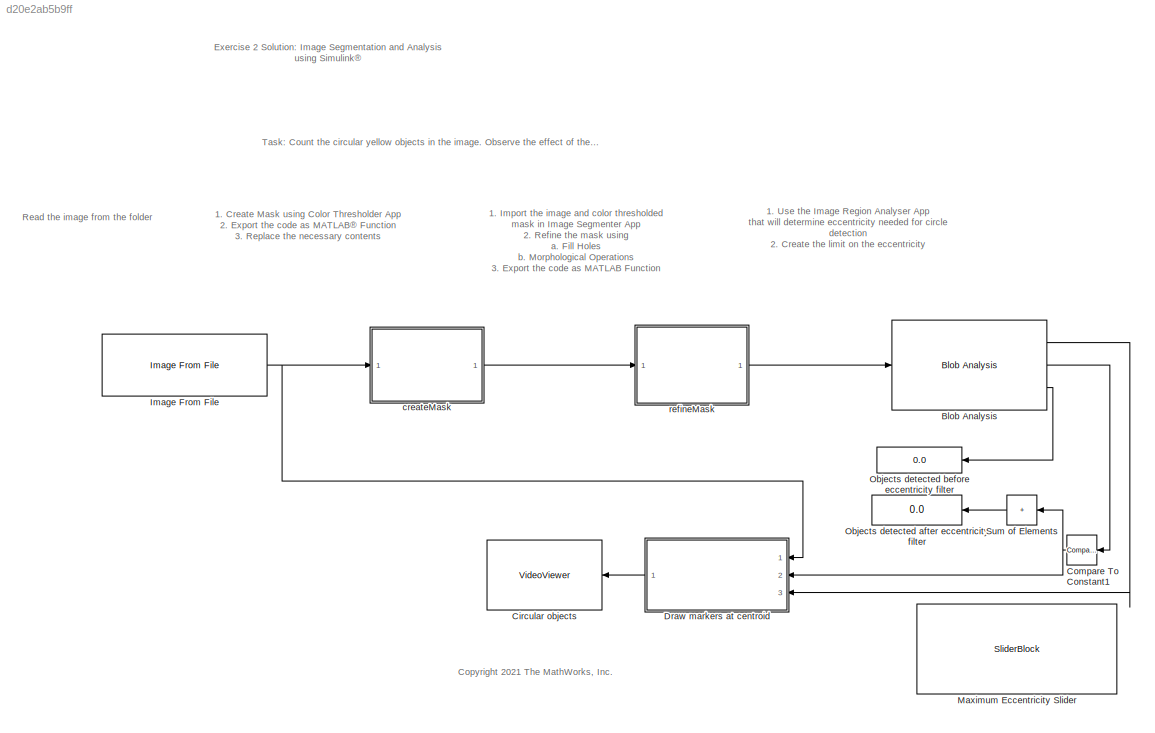
MODEL slx_d20e2ab5b9ff
KIND model
CONFIG AbsTol = auto
CONFIG EnableMultiTasking = off
CONFIG FixedStep = auto
CONFIG MaxStep = auto
CONFIG MinStep = auto
CONFIG RelTol = 1e-3
CONFIG SampleTimeConstraint = Unconstrained
CONFIG SolverName = FixedStepAuto
CONFIG StartTime = 0.0
CONFIG StopTime = 100
BLOCK [Reference] Blob Analysis  REF=visionstatistics/Blob Analysis
  Ports = [1, 3]
  SourceBlock = visionstatistics/Blob Analysis
  SourceProductBaseCode = VP
  SourceType = Blob Analysis
  Tag = vipblks_row_conv
BLOCK [VideoViewer] Circular objects
  FigPos = [1158 564 765 456]
  Ports = [1]
  ScopeSpecificationString = vipscopes.VideoViewerScopeCfg('CurrentConfiguration', extmgr.ConfigurationSet(extmgr.Configuration('Core','General UI',true),extmgr.Configuration('Core','Source UI',true),extmgr.Configuration('Sources','WiredSimulink',true),extmgr.Configuration('Visuals','Video',true),extmgr.Configuration('Tools','Image Navigation Tools',true),extmgr.Configuration('Tools','Image Tool',true),extmgr.Configuration('T...<+76ch>
BLOCK [Reference] Compare To Constant1  REF=simulink/Logic and Bit
Operations/Compare
To Constant
  Ports = [1, 1]
  SourceBlock = simulink/Logic and Bit\nOperations/Compare\nTo Constant
  SourceProductBaseCode = SL
  SourceType = Compare To Constant
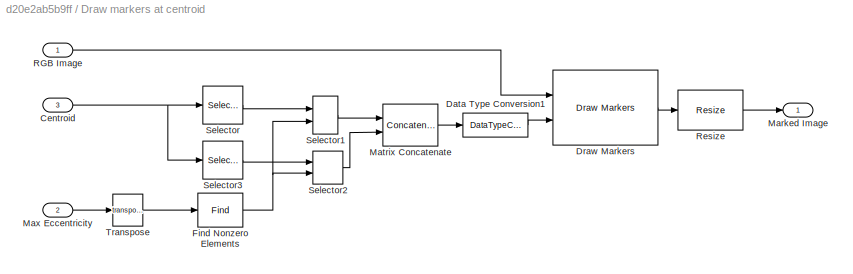
BLOCK [SubSystem] Draw markers at centroid
  Ports = [3, 1]
  RequestExecContextInheritance = off
BLOCK [Inport] Draw markers at centroid/Centroid
  Port = 3
BLOCK [DataTypeConversion] Draw markers at centroid/Data Type Conversion1
  OutDataTypeStr = int32
  RndMeth = Floor
  SaturateOnIntegerOverflow = off
BLOCK [Reference] Draw markers at centroid/Draw Markers  REF=visiontextngfix/Draw Markers
  Ports = [2, 1]
  SourceBlock = visiontextngfix/Draw Markers
  SourceProductBaseCode = VP
  SourceType = Draw Markers
BLOCK [Find] Draw markers at centroid/Find Nonzero Elements
  IndexMode = Zero-based
  NumberOfInputDimensions = 3
  Ports = [1, 1]
BLOCK [Outport] Draw markers at centroid/Marked Image 
BLOCK [Concatenate] Draw markers at centroid/Matrix Concatenate
  ConcatenateDimension = 2
  Mode = Multidimensional array
  Ports = [2, 1]
BLOCK [Inport] Draw markers at centroid/Max Eccentricity
  Port = 2
BLOCK [Inport] Draw markers at centroid/RGB Image
BLOCK [Reference] Draw markers at centroid/Resize  REF=visiongeotforms/Resize
  Ports = [1, 1]
  SourceBlock = visiongeotforms/Resize
  SourceProductBaseCode = VP
  SourceType = Resize
BLOCK [Selector] Draw markers at centroid/Selector
  IndexOptions = Select all,Index vector (dialog)
  Indices = [1],[1]
  InputPortWidth = 3
  NumberOfDimensions = 2
  OutputSizes = 1,1
  Ports = [1, 1]
BLOCK [Selector] Draw markers at centroid/Selector1
  IndexMode = Zero-based
  IndexOptions = Index vector (port)
  Indices = [1 3]
  InputPortWidth = 50
  OutputSizes = 1
  Ports = [2, 1]
BLOCK [Selector] Draw markers at centroid/Selector2
  IndexMode = Zero-based
  IndexOptions = Index vector (port)
  Indices = [1 3]
  InputPortWidth = 50
  OutputSizes = 1
  Ports = [2, 1]
BLOCK [Selector] Draw markers at centroid/Selector3
  IndexOptions = Select all,Index vector (dialog)
  Indices = [2],[2]
  InputPortWidth = 3
  NumberOfDimensions = 2
  OutputSizes = 1,1
  Ports = [1, 1]
BLOCK [Math] Draw markers at centroid/Transpose
  Operator = transpose
  Ports = [1, 1]
BLOCK [Reference] Image From File  REF=visionsources/Image From File
  Ports = [0, 1]
  SourceBlock = visionsources/Image From File
  SourceProductBaseCode = VP
  SourceType = Image From File
  Tag = vipblks_nd
BLOCK [SliderBlock] Maximum Eccentricity Slider
  ScaleMax = 1
BLOCK [Display] Objects detected after eccentricity filter
  Decimation = 1
  Ports = [1]
BLOCK [Display] Objects detected before eccentricity filter
  Decimation = 1
  Ports = [1]
BLOCK [Sum] Sum of Elements
  IconShape = rectangular
  Inputs = +
  Ports = [1, 1]
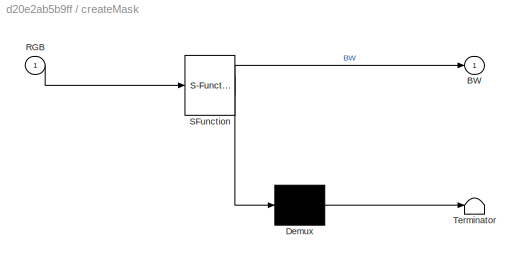
BLOCK [SubSystem] createMask
  ErrorFcn = Stateflow.Translate.translate
  PermitHierarchicalResolution = ExplicitOnly
  Ports = [1, 1]
  RequestExecContextInheritance = off
  SFBlockType = MATLAB Function
  TreatAsAtomicUnit = on
BLOCK [Demux] createMask/ Demux 
  Outputs = 1
  Ports = [1, 1]
BLOCK [S-Function] createMask/ SFunction 
  EnableBusSupport = on
  FunctionName = sf_sfun
  PortCounts = [1 2]
  Ports = [1, 2]
  SFcnIsStateOwnerBlock = off
  SFunctionDeploymentMode = off
  Tag = Stateflow S-Function 2
BLOCK [Terminator] createMask/ Terminator 
BLOCK [Outport] createMask/BW
BLOCK [Inport] createMask/RGB
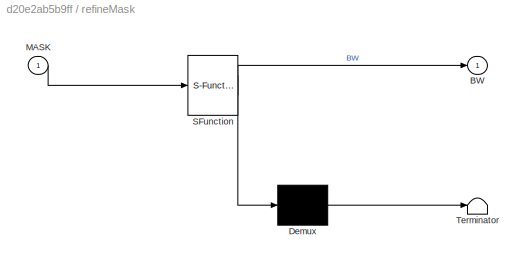
BLOCK [SubSystem] refineMask
  ErrorFcn = Stateflow.Translate.translate
  PermitHierarchicalResolution = ExplicitOnly
  Ports = [1, 1]
  RequestExecContextInheritance = off
  SFBlockType = MATLAB Function
  TreatAsAtomicUnit = on
BLOCK [Demux] refineMask/ Demux 
  Outputs = 1
  Ports = [1, 1]
BLOCK [S-Function] refineMask/ SFunction 
  EnableBusSupport = on
  FunctionName = sf_sfun
  PortCounts = [1 2]
  Ports = [1, 2]
  SFcnIsStateOwnerBlock = off
  SFunctionDeploymentMode = off
  Tag = Stateflow S-Function 1
BLOCK [Terminator] refineMask/ Terminator 
BLOCK [Outport] refineMask/BW
BLOCK [Inport] refineMask/MASK
ANNOTATION (root): 1. Create Mask using Color Thresholder App 2. Export the code as MATLAB® Function 3. Replace the necessary contents
ANNOTATION (root): 1. Import the image and color thresholded mask in Image Segmenter App 2. Refine the mask using a. Fill Holes b. Morphological Operations 3. Export the code as MATLAB Function 4. Replace the necessary contents
ANNOTATION (root): 1. Use the Image Region Analyser App that will determine eccentricity needed for circle detection 2. Create the limit on the eccentricity
ANNOTATION (root): Task: Count the circular yellow objects in the image. Observe the effect of the 'eccentricity' slider on the number of detected objects
ANNOTATION (root): Exercise 2 Solution: Image Segmentation and Analysis using Simulink®
ANNOTATION (root): <copyright redacted>
ANNOTATION (root): Read the image from the folder
LINE Blob Analysis:1 -> Draw markers at centroid:3
LINE Blob Analysis:2 -> Compare To Constant1:1
LINE Blob Analysis:3 -> Objects detected before eccentricity filter:1
NET Compare To Constant1:1 -> Draw markers at centroid:2, Sum of Elements:1
NET Draw markers at centroid/Centroid:1 -> Draw markers at centroid/Selector3:1, Draw markers at centroid/Selector:1
LINE Draw markers at centroid/Data Type Conversion1:1 -> Draw markers at centroid/Draw Markers:2
LINE Draw markers at centroid/Draw Markers:1 -> Draw markers at centroid/Resize:1
NET Draw markers at centroid/Find Nonzero Elements:1 -> Draw markers at centroid/Selector1:2, Draw markers at centroid/Selector2:2
LINE Draw markers at centroid/Matrix Concatenate:1 -> Draw markers at centroid/Data Type Conversion1:1
LINE Draw markers at centroid/Max Eccentricity:1 -> Draw markers at centroid/Transpose:1
LINE Draw markers at centroid/RGB Image:1 -> Draw markers at centroid/Draw Markers:1
LINE Draw markers at centroid/Resize:1 -> Draw markers at centroid/Marked Image :1
LINE Draw markers at centroid/Selector1:1 -> Draw markers at centroid/Matrix Concatenate:1
LINE Draw markers at centroid/Selector2:1 -> Draw markers at centroid/Matrix Concatenate:2
LINE Draw markers at centroid/Selector3:1 -> Draw markers at centroid/Selector2:1
LINE Draw markers at centroid/Selector:1 -> Draw markers at centroid/Selector1:1
LINE Draw markers at centroid/Transpose:1 -> Draw markers at centroid/Find Nonzero Elements:1
LINE Draw markers at centroid:1 -> Circular objects:1
NET Image From File:1 -> Draw markers at centroid:1, createMask:1
LINE Sum of Elements:1 -> Objects detected after eccentricity filter:1
LINE createMask:1 -> refineMask:1
LINE refineMask:1 -> Blob Analysis:1
note: NET lines group one-source signal fan-out (src -> all destinations, sorted); 1:1 wires keep LINE
CHART createMask states=1 transitions=1
  STATE_LABEL 'eML_blk_kernel()'
  STATE_LABEL 'SCRIPT:\nfunction BW  = createMask(RGB)\n%createMask  Threshold RGB image using auto-generated code from colorThresholder app.\n%  [BW,MASKEDRGBIMAGE] = createMask(RGB) thresholds image RGB using\n%  auto-generated code from the colorThresholder app. The colorspace and\n%  range for each channel of the colorspace were set within the app. The\n%  segmentation mask is returned in BW, and a composite of th...<+1314ch>'
CHART refineMask states=1 transitions=1
  STATE_LABEL 'eML_blk_kernel()'
  STATE_LABEL "SCRIPT:\nfunction BW = refineMask(MASK)\n\n% Create empty mask.\nBW = false(size(MASK,1),size(MASK,2));\n\n% Load Mask\nBW = MASK;\n\n% Fill holes\nBW = imfill(BW, 'holes');\n\n% Open mask with disk\nradius = 3;\ndecomposition = 0;\nse = strel('disk', radius, decomposition);\nBW = imopen(BW, se);\n\n"
CHART  states=0 transitions=0
CHART  states=0 transitions=0
